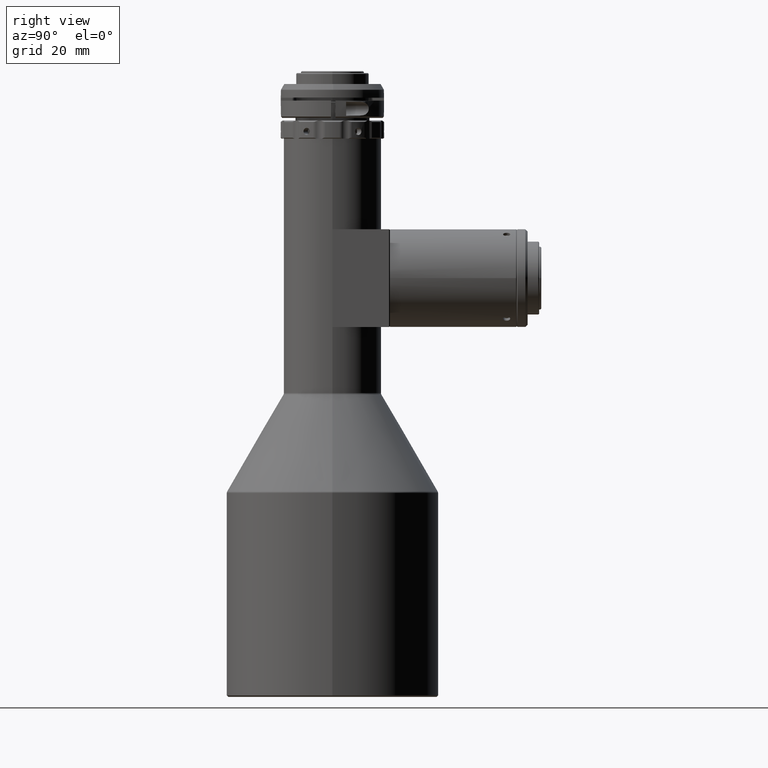
[diagram: clean part render]
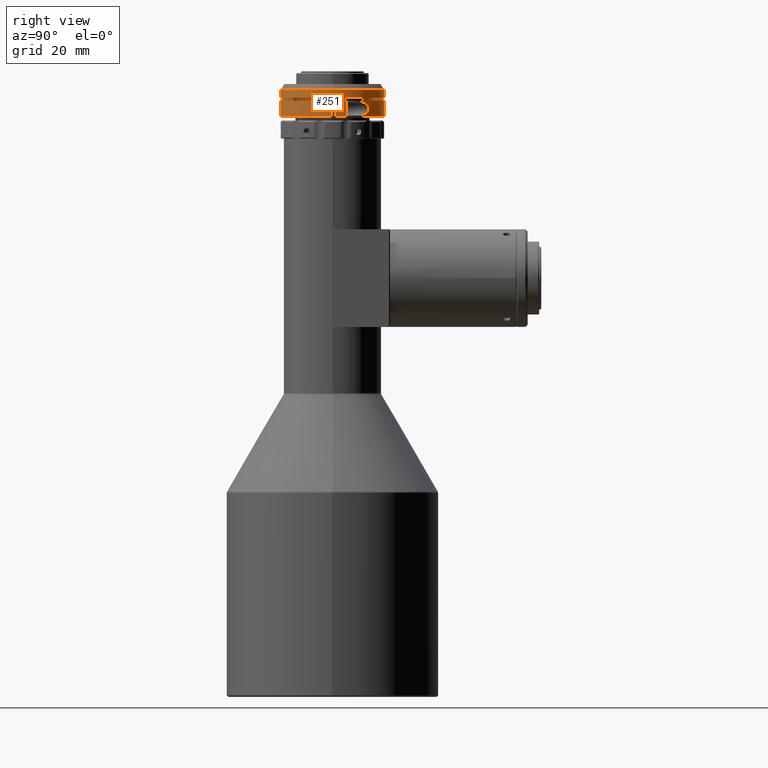
[diagram: same view with one face highlighted and labeled with its STEP entity id]
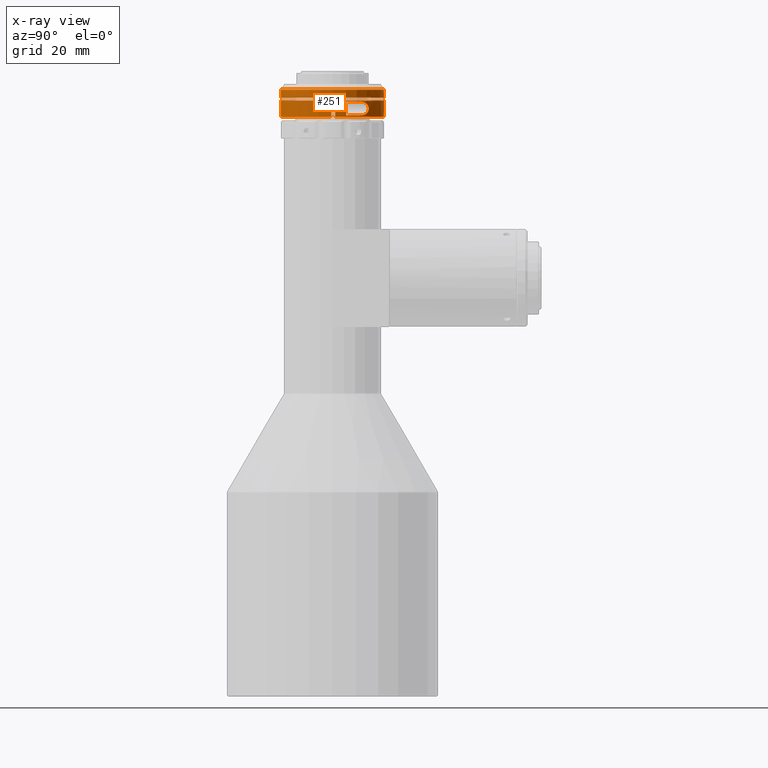
[diagram: x-ray of the same camera — body ghosted, the highlighted face saturated]
A machine part, right view. The second image highlights one B-rep face of the part: STEP entity #251.
The next image is the same camera in x-ray: the body ghosted, the highlighted face saturated — about 0% of this face is hidden behind the body in this view.
In plain terms, the highlighted cylindrical surface (partial cylindrical patch) has radius 18 mm, axis along (0, 0, -1).
Its self-contained STEP definition (entity closure, byte-faithful):
#104 = VECTOR ( 'NONE', #317, 1000.000000000000000 ) ;
#126 = DIRECTION ( 'NONE',  ( 2.463941623592093700E-016, 2.161746784901134000E-017, -1.000000000000000000 ) ) ;
#146 = EDGE_CURVE ( 'NONE', #4714, #8037, #7622, .T. ) ;
#179 = ORIENTED_EDGE ( 'NONE', *, *, #146, .T. ) ;
#250 = CARTESIAN_POINT ( 'NONE',  ( -1.860275302330186300E-013, 2.696197957072992600E-013, 94.66839850271087200 ) ) ;
#251 = ADVANCED_FACE ( 'NONE', ( #4693, #9172 ), #1079, .T. ) ;
#253 = CARTESIAN_POINT ( 'NONE',  ( 13.91778012469544900, 11.41634221340980700, 89.84969336358597000 ) ) ;
#276 = ORIENTED_EDGE ( 'NONE', *, *, #3753, .F. ) ;
#317 = DIRECTION ( 'NONE',  ( -2.463941623592093700E-016, -2.161746784901134000E-017, 1.000000000000000000 ) ) ;
#333 = EDGE_CURVE ( 'NONE', #5434, #10257, #5228, .T. ) ;
#389 = LINE ( 'NONE', #8160, #2191 ) ;
#444 = ORIENTED_EDGE ( 'NONE', *, *, #1379, .T. ) ;
#454 = CARTESIAN_POINT ( 'NONE',  ( -1.862739243953779200E-013, 2.695981782394504000E-013, 95.66839850271087200 ) ) ;
#470 = CARTESIAN_POINT ( 'NONE',  ( 14.79327925331057400, 10.26326932814957300, 94.23942589481144700 ) ) ;
#507 = CARTESIAN_POINT ( 'NONE',  ( 12.81284642609787600, 12.64244390992997100, 92.08390367129405300 ) ) ;
#518 = DIRECTION ( 'NONE',  ( 2.463941623592093700E-016, 2.161746784901134000E-017, -1.000000000000000000 ) ) ;
#623 = LINE ( 'NONE', #1374, #9546 ) ;
#684 = CARTESIAN_POINT ( 'NONE',  ( 17.35655202714172400, 4.769706671182140300, 94.26839850271086600 ) ) ;
#711 = EDGE_CURVE ( 'NONE', #10732, #8189, #2728, .T. ) ;
#806 = CARTESIAN_POINT ( 'NONE',  ( -1.869638280499836800E-013, 2.695376493294731700E-013, 98.46839850271086900 ) ) ;
#1059 = CARTESIAN_POINT ( 'NONE',  ( 12.94379403281437700, 12.50856723739591700, 91.04537045628534000 ) ) ;
#1079 = CYLINDRICAL_SURFACE ( 'NONE', #5051, 18.00000000000001100 ) ;
#1173 = CARTESIAN_POINT ( 'NONE',  ( 14.04470360970384300, 11.25999359053525400, 89.77540083967140600 ) ) ;
#1211 = VECTOR ( 'NONE', #9053, 1000.000000000000000 ) ;
#1247 = CARTESIAN_POINT ( 'NONE',  ( 13.21248642995543900, 12.22493818861489400, 93.20912604022188900 ) ) ;
#1310 = DIRECTION ( 'NONE',  ( -2.463941623592093700E-016, -2.161746784901134000E-017, 1.000000000000000000 ) ) ;
#1374 = CARTESIAN_POINT ( 'NONE',  ( -1.823744744255661400, -17.90737152984188500, 88.66839850271087200 ) ) ;
#1379 = EDGE_CURVE ( 'NONE', #8189, #6009, #623, .T. ) ;
#1400 = CARTESIAN_POINT ( 'NONE',  ( 14.42282807581264200, 10.77153574880074100, 94.13042683156349700 ) ) ;
#1460 = CARTESIAN_POINT ( 'NONE',  ( -0.7212002124671382800, -17.98554614832501400, 88.66839850271087200 ) ) ;
#1562 = AXIS2_PLACEMENT_3D ( 'NONE', #3023, #2166, #10911 ) ;
#1648 = DIRECTION ( 'NONE',  ( -2.463941623592093700E-016, -2.161746784901134000E-017, 1.000000000000000000 ) ) ;
#1655 = DIRECTION ( 'NONE',  ( -0.9998797724984025400, -0.01550614550888749900, 0.0000000000000000000 ) ) ;
#1800 = EDGE_CURVE ( 'NONE', #10139, #5434, #3959, .T. ) ;
#1823 = CARTESIAN_POINT ( 'NONE',  ( -1.845491652588633500E-013, 2.697495005143935000E-013, 88.66839850271087200 ) ) ;
#1889 = EDGE_CURVE ( 'NONE', #8851, #7401, #4648, .T. ) ;
#1941 = AXIS2_PLACEMENT_3D ( 'NONE', #7199, #7279, #2727 ) ;
#1949 = CARTESIAN_POINT ( 'NONE',  ( 12.84088626490440500, 12.61396253008440900, 91.44680181505401600 ) ) ;
#1977 = CARTESIAN_POINT ( 'NONE',  ( -1.278559332530038400, 17.95453385730776200, 95.66839850271087200 ) ) ;
#2026 = CARTESIAN_POINT ( 'NONE',  ( -2.378149588952355800, 17.84220851051173200, 88.66839850271087200 ) ) ;
#2128 = EDGE_CURVE ( 'NONE', #6951, #9884, #2830, .T. ) ;
#2166 = DIRECTION ( 'NONE',  ( -2.463941623592093700E-016, -2.161746784901134000E-017, 1.000000000000000000 ) ) ;
#2191 = VECTOR ( 'NONE', #2817, 1000.000000000000000 ) ;
#2210 = CARTESIAN_POINT ( 'NONE',  ( 13.54976573215053500, 11.85046398964429000, 93.60206873940390400 ) ) ;
#2233 = DIRECTION ( 'NONE',  ( -2.463941623592093700E-016, -2.161746784901134000E-017, 1.000000000000000000 ) ) ;
#2345 = CARTESIAN_POINT ( 'NONE',  ( 17.99245639420374200, -0.5210689999129137800, 94.66839850271087200 ) ) ;
#2501 = VECTOR ( 'NONE', #5023, 1000.000000000000000 ) ;
#2598 = EDGE_CURVE ( 'NONE', #10257, #10732, #8066, .T. ) ;
#2727 = DIRECTION ( 'NONE',  ( -0.9998797724984025400, -0.01550614550888749900, 0.0000000000000000000 ) ) ;
#2728 = CIRCLE ( 'NONE', #3494, 18.00000000000001100 ) ;
#2817 = DIRECTION ( 'NONE',  ( 2.463941623592093700E-016, 2.161746784901134000E-017, -1.000000000000000000 ) ) ;
#2830 = CIRCLE ( 'NONE', #1941, 18.00000000000001100 ) ;
#2843 = DIRECTION ( 'NONE',  ( -0.9998797724984025400, -0.01550614550888749900, 0.0000000000000000000 ) ) ;
#2923 = CARTESIAN_POINT ( 'NONE',  ( 14.29491324808679100, 10.94059460783533700, 89.65471184108008600 ) ) ;
#2972 = AXIS2_PLACEMENT_3D ( 'NONE', #9639, #1648, #7882 ) ;
#3019 = EDGE_CURVE ( 'NONE', #10954, #8851, #7763, .T. ) ;
#3023 = CARTESIAN_POINT ( 'NONE',  ( -1.846723623400429700E-013, 2.697386917804688500E-013, 89.16839850271088600 ) ) ;
#3149 = CARTESIAN_POINT ( 'NONE',  ( 15.25364985552847800, 9.556472470788358800, 94.26839850271086600 ) ) ;
#3282 = ORIENTED_EDGE ( 'NONE', *, *, #3294, .F. ) ;
#3294 = EDGE_CURVE ( 'NONE', #9884, #8429, #389, .T. ) ;
#3407 = CARTESIAN_POINT ( 'NONE',  ( 17.96764656138952500, 1.078738636084533000, 88.66839850271087200 ) ) ;
#3494 = AXIS2_PLACEMENT_3D ( 'NONE', #6626, #5696, #7385 ) ;
#3546 = ORIENTED_EDGE ( 'NONE', *, *, #2128, .F. ) ;
#3559 = DIRECTION ( 'NONE',  ( 2.463941623592093700E-016, 2.161746784901134000E-017, -1.000000000000000000 ) ) ;
#3753 = EDGE_CURVE ( 'NONE', #5967, #6951, #10021, .T. ) ;
#3823 = AXIS2_PLACEMENT_3D ( 'NONE', #5919, #7707, #6955 ) ;
#3894 = CARTESIAN_POINT ( 'NONE',  ( 13.32058590806484800, 12.10750342687876600, 93.35288764697720900 ) ) ;
#3959 = CIRCLE ( 'NONE', #1562, 18.00000000000001100 ) ;
#4076 = AXIS2_PLACEMENT_3D ( 'NONE', #5540, #9151, #8245 ) ;
#4177 = AXIS2_PLACEMENT_3D ( 'NONE', #806, #6988, #1655 ) ;
#4280 = EDGE_CURVE ( 'NONE', #5067, #7524, #7815, .T. ) ;
#4403 = EDGE_LOOP ( 'NONE', ( #7368, #8199, #4650, #10679, #444, #8575, #179, #7713, #7364, #11086, #5212, #7183, #8122 ) ) ;
#4592 = CARTESIAN_POINT ( 'NONE',  ( 13.20950366294801600, 12.22814422247728700, 90.53226563954875400 ) ) ;
#4648 = CIRCLE ( 'NONE', #6702, 18.00000000000001100 ) ;
#4650 = ORIENTED_EDGE ( 'NONE', *, *, #2598, .T. ) ;
#4693 = FACE_BOUND ( 'NONE', #8161, .T. ) ;
#4714 = VERTEX_POINT ( 'NONE', #9598 ) ;
#4746 = CARTESIAN_POINT ( 'NONE',  ( 13.54801001412924300, 11.85248355459356200, 90.13627838860402600 ) ) ;
#4783 = CARTESIAN_POINT ( 'NONE',  ( 14.04572285592690600, 11.25873110610437800, 93.96197835019421500 ) ) ;
#4876 = DIRECTION ( 'NONE',  ( 0.9998797724984025400, 0.01550614550888749900, 0.0000000000000000000 ) ) ;
#4912 = CIRCLE ( 'NONE', #4076, 18.00000000000001100 ) ;
#4977 = VECTOR ( 'NONE', #2233, 1000.000000000000000 ) ;
#5023 = DIRECTION ( 'NONE',  ( 2.463941623592093700E-016, 2.161746784901134000E-017, -1.000000000000000000 ) ) ;
#5051 = AXIS2_PLACEMENT_3D ( 'NONE', #1823, #9860, #9017 ) ;
#5067 = VERTEX_POINT ( 'NONE', #6643 ) ;
#5212 = ORIENTED_EDGE ( 'NONE', *, *, #10295, .T. ) ;
#5222 = EDGE_CURVE ( 'NONE', #8037, #10954, #10988, .T. ) ;
#5228 = LINE ( 'NONE', #2026, #104 ) ;
#5434 = VERTEX_POINT ( 'NONE', #5823 ) ;
#5540 = CARTESIAN_POINT ( 'NONE',  ( -1.847462805887508100E-013, 2.697322065401142800E-013, 89.46839850271088300 ) ) ;
#5603 = CARTESIAN_POINT ( 'NONE',  ( 15.02821186078130600, 9.916307362430341500, 89.46839850271085500 ) ) ;
#5665 = CARTESIAN_POINT ( 'NONE',  ( 17.35655202714172800, 4.769706671182139400, 89.46839850271088300 ) ) ;
#5676 = CARTESIAN_POINT ( 'NONE',  ( -1.823744744255663600, -17.90737152984187500, 98.46839850271086900 ) ) ;
#5677 = CARTESIAN_POINT ( 'NONE',  ( 15.02929565472260600, 9.914577454941309000, 94.26839850271090900 ) ) ;
#5696 = DIRECTION ( 'NONE',  ( 2.463941623592093700E-016, 2.161746784901134000E-017, -1.000000000000000000 ) ) ;
#5755 = CARTESIAN_POINT ( 'NONE',  ( 15.25364985552847800, 9.556472470788358800, 94.26839850271086600 ) ) ;
#5790 = CARTESIAN_POINT ( 'NONE',  ( 13.07124147639308700, 12.37527268831399700, 92.96202279514413600 ) ) ;
#5809 = CARTESIAN_POINT ( 'NONE',  ( 15.25364985552848500, 9.556472470788362400, 89.46839850271088300 ) ) ;
#5823 = CARTESIAN_POINT ( 'NONE',  ( -2.378149588952354500, 17.84220851051172800, 89.16839850271088600 ) ) ;
#5828 = CARTESIAN_POINT ( 'NONE',  ( 12.80543354469124200, 12.64993564160807600, 91.97578669568298400 ) ) ;
#5845 = LINE ( 'NONE', #6814, #2501 ) ;
#5919 = CARTESIAN_POINT ( 'NONE',  ( -1.860275302330186300E-013, 2.696197957072992600E-013, 94.66839850271087200 ) ) ;
#5967 = VERTEX_POINT ( 'NONE', #5809 ) ;
#6009 = VERTEX_POINT ( 'NONE', #8675 ) ;
#6259 = VECTOR ( 'NONE', #3559, 1000.000000000000000 ) ;
#6384 = CARTESIAN_POINT ( 'NONE',  ( 13.02321438613221700, 12.42635848509050700, 90.85943281679266200 ) ) ;
#6506 = CARTESIAN_POINT ( 'NONE',  ( 14.78768569995801000, 10.27122781227885200, 89.49854015765822600 ) ) ;
#6556 = ORIENTED_EDGE ( 'NONE', *, *, #7841, .F. ) ;
#6574 = CARTESIAN_POINT ( 'NONE',  ( 12.86283648474137400, 12.59162332666766900, 92.39642450862497500 ) ) ;
#6626 = CARTESIAN_POINT ( 'NONE',  ( -1.869638280499836800E-013, 2.695376493294731700E-013, 98.46839850271086900 ) ) ;
#6640 = CARTESIAN_POINT ( 'NONE',  ( 12.95148178269514400, 12.50048758075436200, 92.69251016506493100 ) ) ;
#6643 = CARTESIAN_POINT ( 'NONE',  ( -1.278559332530037500, 17.95453385730776200, 94.66839850271087200 ) ) ;
#6702 = AXIS2_PLACEMENT_3D ( 'NONE', #454, #1310, #4876 ) ;
#6720 = CARTESIAN_POINT ( 'NONE',  ( 12.84165438404596700, 12.61318097211040300, 92.29419890710543900 ) ) ;
#6814 = CARTESIAN_POINT ( 'NONE',  ( -1.278559332530035700, 17.95453385730775900, 88.66839850271087200 ) ) ;
#6848 = CARTESIAN_POINT ( 'NONE',  ( -0.7212002124671399500, -17.98554614832501400, 94.66839850271087200 ) ) ;
#6951 = VERTEX_POINT ( 'NONE', #5755 ) ;
#6955 = DIRECTION ( 'NONE',  ( -0.9998797724984025400, -0.01550614550888749900, 0.0000000000000000000 ) ) ;
#6988 = DIRECTION ( 'NONE',  ( 2.463941623592093700E-016, 2.161746784901134000E-017, -1.000000000000000000 ) ) ;
#7183 = ORIENTED_EDGE ( 'NONE', *, *, #4280, .T. ) ;
#7196 = CARTESIAN_POINT ( 'NONE',  ( 17.99245639420374600, -0.5210689999129140000, 88.66839850271087200 ) ) ;
#7199 = CARTESIAN_POINT ( 'NONE',  ( -1.859289725680749200E-013, 2.696284426944387200E-013, 94.26839850271086600 ) ) ;
#7218 = CARTESIAN_POINT ( 'NONE',  ( 17.96764656138952500, 1.078738636084533000, 89.16839850271088600 ) ) ;
#7279 = DIRECTION ( 'NONE',  ( 2.463941623592093700E-016, 2.161746784901134000E-017, -1.000000000000000000 ) ) ;
#7281 = CARTESIAN_POINT ( 'NONE',  ( 12.86229875790307300, 12.59217158541530100, 91.34280586805580500 ) ) ;
#7364 = ORIENTED_EDGE ( 'NONE', *, *, #3019, .T. ) ;
#7368 = ORIENTED_EDGE ( 'NONE', *, *, #1800, .T. ) ;
#7385 = DIRECTION ( 'NONE',  ( -0.9998797724984025400, -0.01550614550888749900, 0.0000000000000000000 ) ) ;
#7400 = CARTESIAN_POINT ( 'NONE',  ( 13.66903693053043900, 11.71302277487950100, 90.03059226447219000 ) ) ;
#7401 = VERTEX_POINT ( 'NONE', #1977 ) ;
#7440 = CARTESIAN_POINT ( 'NONE',  ( 13.31764766780732000, 12.11074739027298200, 90.38747023197299800 ) ) ;
#7454 = CARTESIAN_POINT ( 'NONE',  ( 17.99783590497106900, 0.2791106191602468200, 98.46839850271086900 ) ) ;
#7480 = CARTESIAN_POINT ( 'NONE',  ( 14.29650665435029200, 10.93852157044942600, 94.08276224836724600 ) ) ;
#7524 = VERTEX_POINT ( 'NONE', #8480 ) ;
#7590 = CARTESIAN_POINT ( 'NONE',  ( 13.02819513737824800, 12.42051535108233800, 92.87537191874473300 ) ) ;
#7622 = LINE ( 'NONE', #7196, #1211 ) ;
#7707 = DIRECTION ( 'NONE',  ( 2.463941623592093700E-016, 2.161746784901134000E-017, -1.000000000000000000 ) ) ;
#7713 = ORIENTED_EDGE ( 'NONE', *, *, #5222, .T. ) ;
#7763 = LINE ( 'NONE', #1460, #4977 ) ;
#7815 = CIRCLE ( 'NONE', #3823, 18.00000000000001100 ) ;
#7841 = EDGE_CURVE ( 'NONE', #8429, #5967, #4912, .T. ) ;
#7882 = DIRECTION ( 'NONE',  ( 0.9998797724984025400, 0.01550614550888749900, 0.0000000000000000000 ) ) ;
#8037 = VERTEX_POINT ( 'NONE', #2345 ) ;
#8066 = CIRCLE ( 'NONE', #4177, 18.00000000000001100 ) ;
#8122 = ORIENTED_EDGE ( 'NONE', *, *, #10651, .T. ) ;
#8160 = CARTESIAN_POINT ( 'NONE',  ( 17.35655202714172800, 4.769706671182143000, 88.66839850271087200 ) ) ;
#8161 = EDGE_LOOP ( 'NONE', ( #3546, #276, #6556, #3282 ) ) ;
#8189 = VERTEX_POINT ( 'NONE', #5676 ) ;
#8199 = ORIENTED_EDGE ( 'NONE', *, *, #333, .T. ) ;
#8209 = CARTESIAN_POINT ( 'NONE',  ( -0.7212002124671399500, -17.98554614832501400, 95.66839850271087200 ) ) ;
#8245 = DIRECTION ( 'NONE',  ( 0.9998797724984025400, 0.01550614550888749900, 0.0000000000000000000 ) ) ;
#8309 = CARTESIAN_POINT ( 'NONE',  ( 14.41918471421060000, 10.77638874858335100, 89.60768685573219700 ) ) ;
#8381 = CARTESIAN_POINT ( 'NONE',  ( 13.92050819336950900, 11.41300128360727900, 93.88876563274347100 ) ) ;
#8429 = VERTEX_POINT ( 'NONE', #5665 ) ;
#8480 = CARTESIAN_POINT ( 'NONE',  ( 17.96764656138953600, 1.078738636084535200, 94.66839850271087200 ) ) ;
#8550 = CARTESIAN_POINT ( 'NONE',  ( -2.378149588952357600, 17.84220851051173900, 98.46839850271086900 ) ) ;
#8575 = ORIENTED_EDGE ( 'NONE', *, *, #8662, .T. ) ;
#8662 = EDGE_CURVE ( 'NONE', #6009, #4714, #8821, .T. ) ;
#8675 = CARTESIAN_POINT ( 'NONE',  ( -1.823744744255660200, -17.90737152984188500, 89.16839850271088600 ) ) ;
#8784 = LINE ( 'NONE', #3407, #6259 ) ;
#8821 = CIRCLE ( 'NONE', #2972, 18.00000000000001100 ) ;
#8851 = VERTEX_POINT ( 'NONE', #8209 ) ;
#9017 = DIRECTION ( 'NONE',  ( -0.9998797724984025400, -0.01550614550888749900, 0.0000000000000000000 ) ) ;
#9053 = DIRECTION ( 'NONE',  ( -2.463941623592093700E-016, -2.161746784901134000E-017, 1.000000000000000000 ) ) ;
#9151 = DIRECTION ( 'NONE',  ( -2.463941623592093700E-016, -2.161746784901134000E-017, 1.000000000000000000 ) ) ;
#9172 = FACE_OUTER_BOUND ( 'NONE', #4403, .T. ) ;
#9277 = CARTESIAN_POINT ( 'NONE',  ( 12.80534107710307600, 12.65002924515933600, 91.76306379886492000 ) ) ;
#9500 = AXIS2_PLACEMENT_3D ( 'NONE', #250, #126, #2843 ) ;
#9546 = VECTOR ( 'NONE', #518, 1000.000000000000000 ) ;
#9598 = CARTESIAN_POINT ( 'NONE',  ( 17.99245639420374600, -0.5210689999129140000, 89.16839850271088600 ) ) ;
#9639 = CARTESIAN_POINT ( 'NONE',  ( -1.846723623400429700E-013, 2.697386917804688500E-013, 89.16839850271088600 ) ) ;
#9860 = DIRECTION ( 'NONE',  ( 2.463941623592093700E-016, 2.161746784901134000E-017, -1.000000000000000000 ) ) ;
#9884 = VERTEX_POINT ( 'NONE', #684 ) ;
#10021 = B_SPLINE_CURVE_WITH_KNOTS ( 'NONE', 3,
 ( #10926, #5603, #6506, #8309, #2923, #1173, #253, #7400, #4746, #7440, #4592, #6384, #1059, #7281, #1949, #11159, #9277, #5828, #507, #6720, #6574, #11002, #6640, #7590, #5790, #1247, #3894, #2210, #10120, #8381, #4783, #7480, #1400, #470, #5677, #3149 ),
 .UNSPECIFIED., .F., .F.,
 ( 4, 2, 2, 2, 2, 2, 2, 2, 2, 2, 2, 2, 2, 2, 2, 2, 2, 4 ),
 ( 0.005355808340054662500, 0.006612485837347347300, 0.007240824585993688300, 0.007869163334640029400, 0.008497502083286369600, 0.009125840831932709900, 0.009754179580579050100, 0.01006834895490221900, 0.01038251832922539000, 0.01069668770354856100, 0.01101085707787173100, 0.01132502645219490200, 0.01163919582651807100, 0.01226753457516441100, 0.01289587332381075100, 0.01352421207245709300, 0.01415255082110343200, 0.01540922831839611600 ),
 .UNSPECIFIED. ) ;
#10120 = CARTESIAN_POINT ( 'NONE',  ( 13.67293556861025100, 11.70845760969061000, 93.70935352317434300 ) ) ;
#10139 = VERTEX_POINT ( 'NONE', #7218 ) ;
#10257 = VERTEX_POINT ( 'NONE', #8550 ) ;
#10295 = EDGE_CURVE ( 'NONE', #7401, #5067, #5845, .T. ) ;
#10651 = EDGE_CURVE ( 'NONE', #7524, #10139, #8784, .T. ) ;
#10679 = ORIENTED_EDGE ( 'NONE', *, *, #711, .T. ) ;
#10732 = VERTEX_POINT ( 'NONE', #7454 ) ;
#10911 = DIRECTION ( 'NONE',  ( 0.9998797724984025400, 0.01550614550888749900, 0.0000000000000000000 ) ) ;
#10926 = CARTESIAN_POINT ( 'NONE',  ( 15.25364985552848500, 9.556472470788362400, 89.46839850271088300 ) ) ;
#10954 = VERTEX_POINT ( 'NONE', #6848 ) ;
#10988 = CIRCLE ( 'NONE', #9500, 18.00000000000001100 ) ;
#11002 = CARTESIAN_POINT ( 'NONE',  ( 12.91762508934694700, 12.53540994483025800, 92.59543286545844900 ) ) ;
#11086 = ORIENTED_EDGE ( 'NONE', *, *, #1889, .T. ) ;
#11159 = CARTESIAN_POINT ( 'NONE',  ( 12.81244755493511200, 12.64284771839879300, 91.65726692524084700 ) ) ;